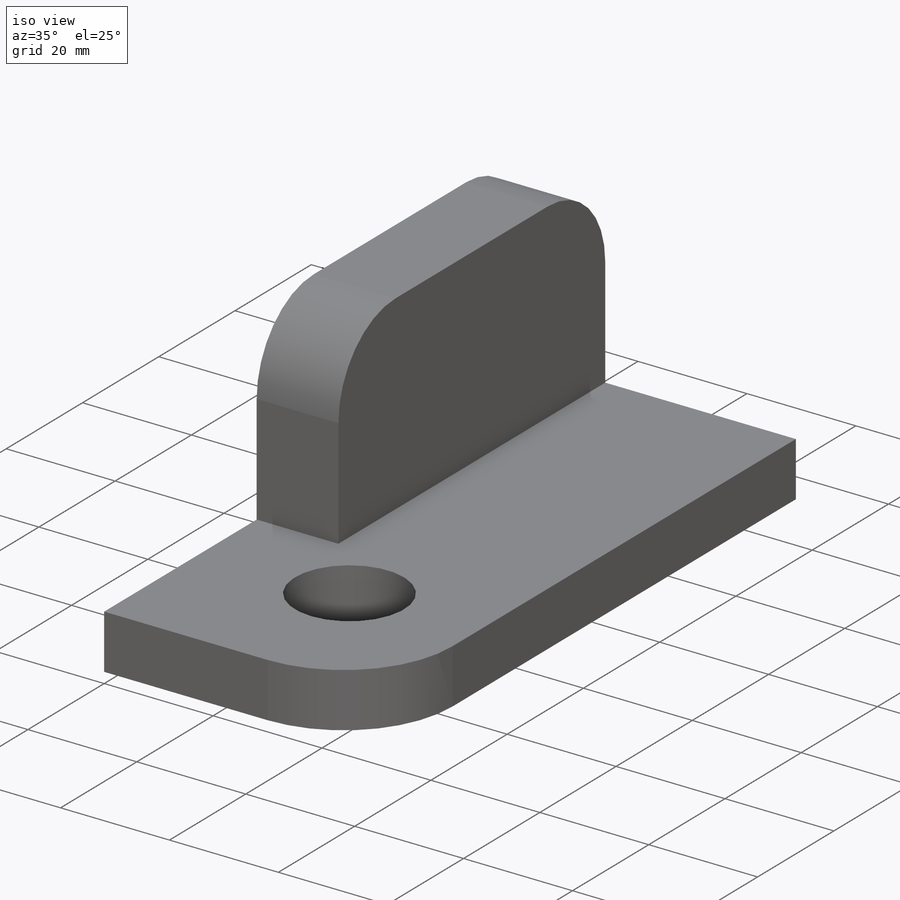
[diagram: iso view]
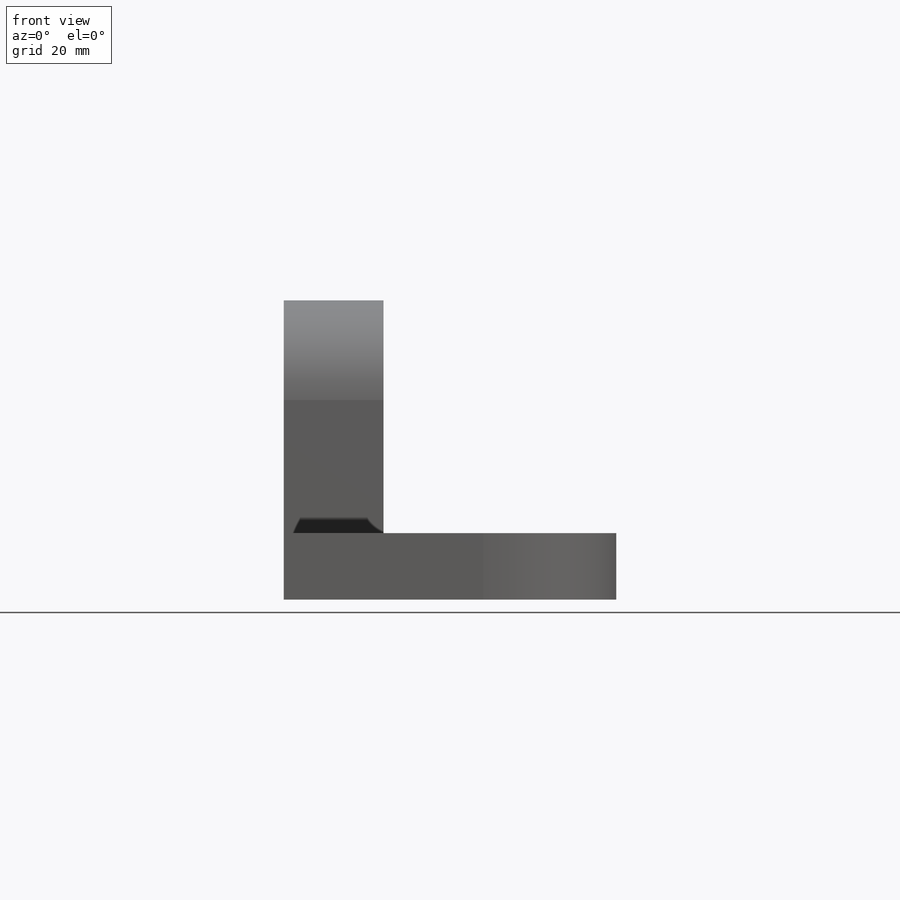
[diagram: front view]
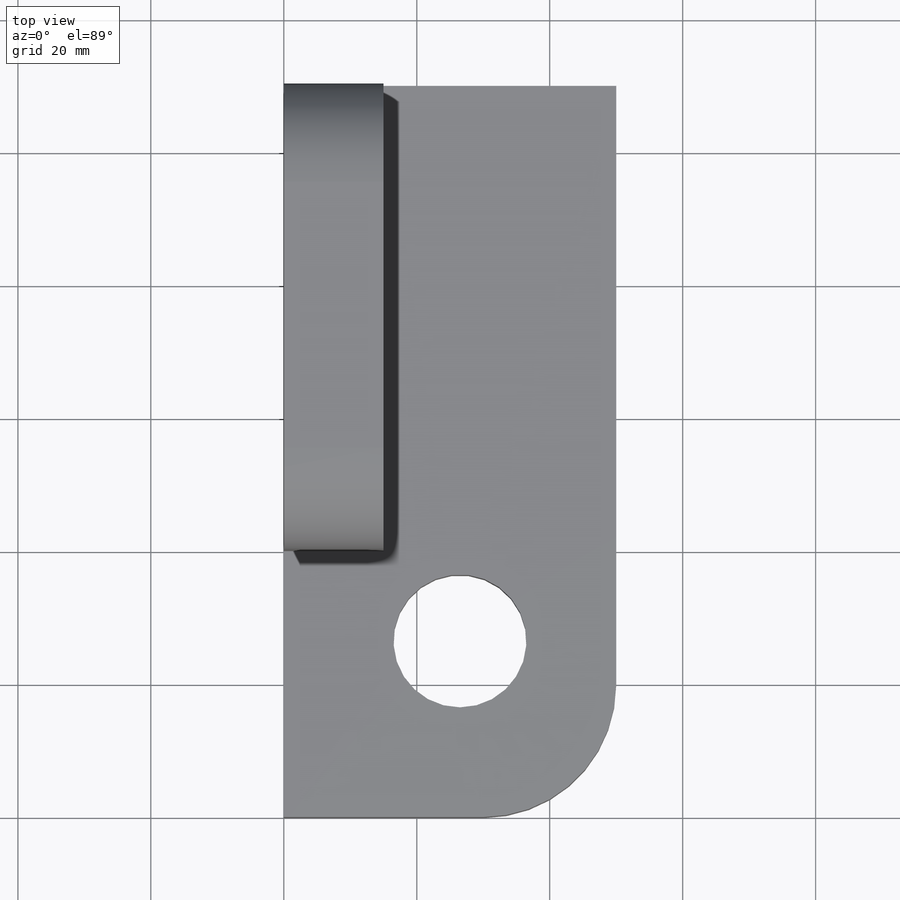
[diagram: top view]
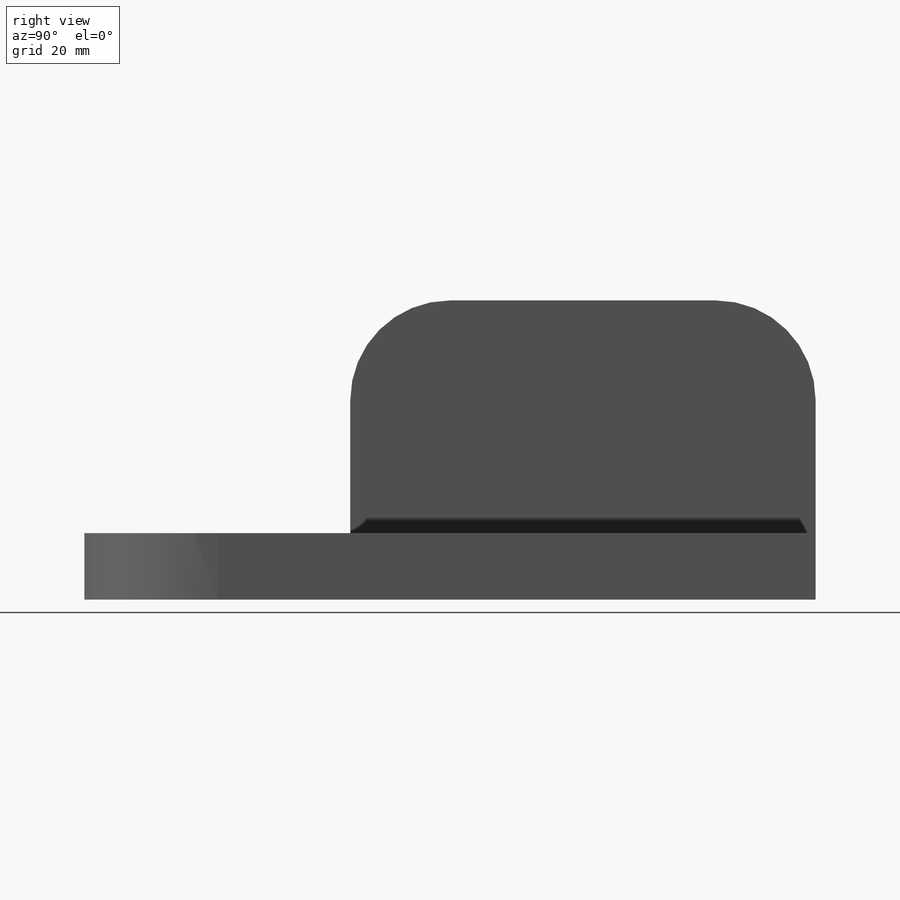
[diagram: right view]
SOLIDWORKS PART (.sldprt)
format: sldprt  version: not decoded by parser v0  size: 167,424 bytes
history: native  units: mm
features: plane x3, sketch x3, cut_extrude x2, fillet x2, material x1, extrude x1 + 3 further entries (+7 scaffold rows collapsed)
feature tree (22):
  scaffold x7  (default folders/planes/origin — collapsed)
  material  "재질 <지정안함>"
  "곡면 바디"
  "솔리드 바디"
  plane  "정면"
  plane  "윗면"
  plane  "우측면"
  "원점"
  sketch  "스케치1"  dims[D1=110.0mm D2=10.0mm D3=45.0mm D4=70.0mm]
  extrude  "보스-돌출1"  Depth=50mm
  sketch  "스케치2"  dims[D1=15.0mm]
  cut_extrude  "컷-돌출1"  Depth=116mm
  fillet  "필렛1"  Radius=15mm
  sketch  "스케치3"  dims[D1=20.0mm D2=26.5mm D3=26.5mm]
  cut_extrude  "컷-돌출2"  Depth=10mm
  fillet  "필렛2"  Radius=20mm
decode coverage: 8 of 8 modeling features carry decoded parameters; 3 rows unclassified (native names shown)
note: suppression state not decoded; provenance and decode notes live in map.json
